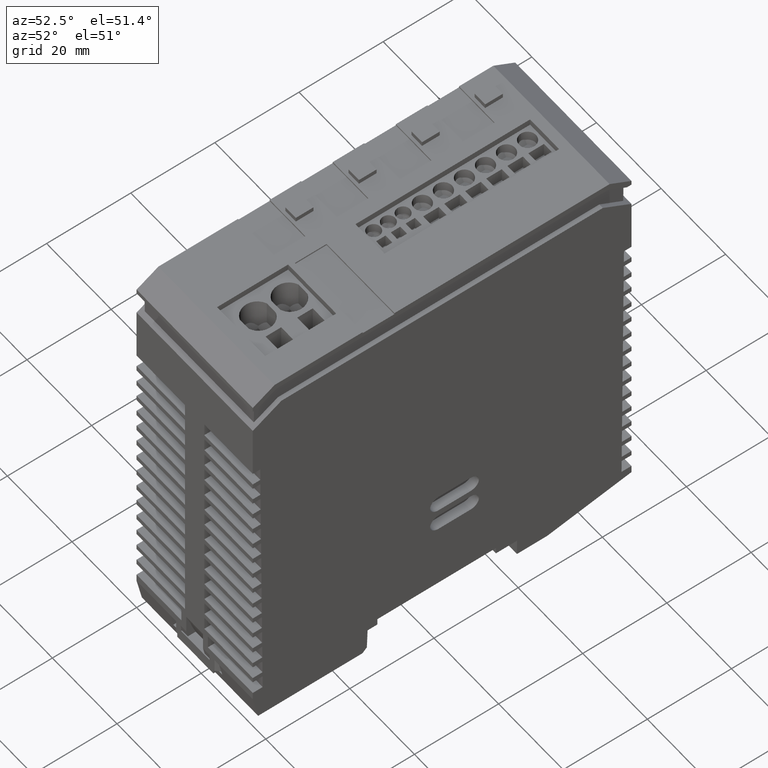
[diagram: clean part render]
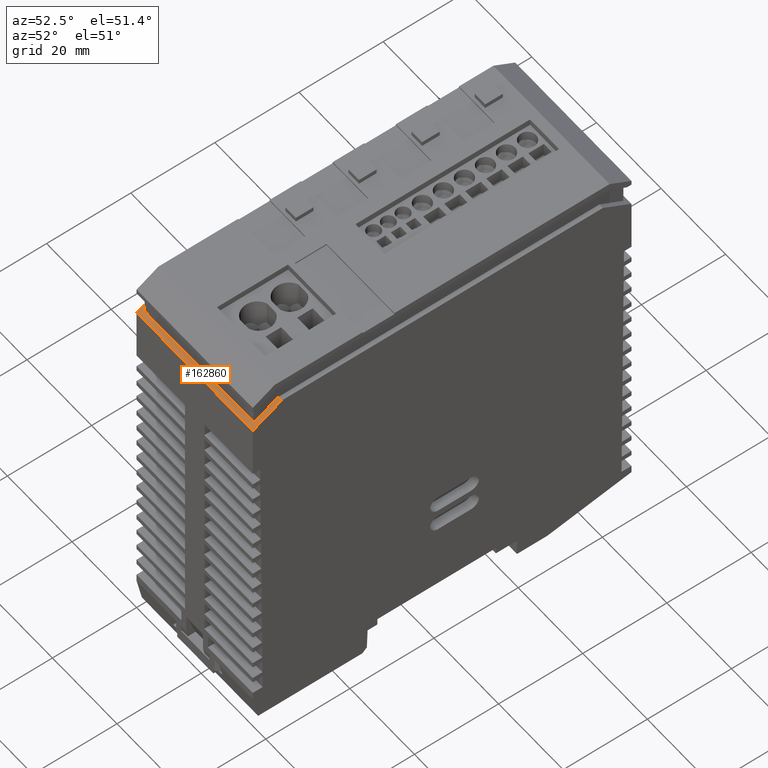
[diagram: same view with one face highlighted and labeled with its STEP entity id]
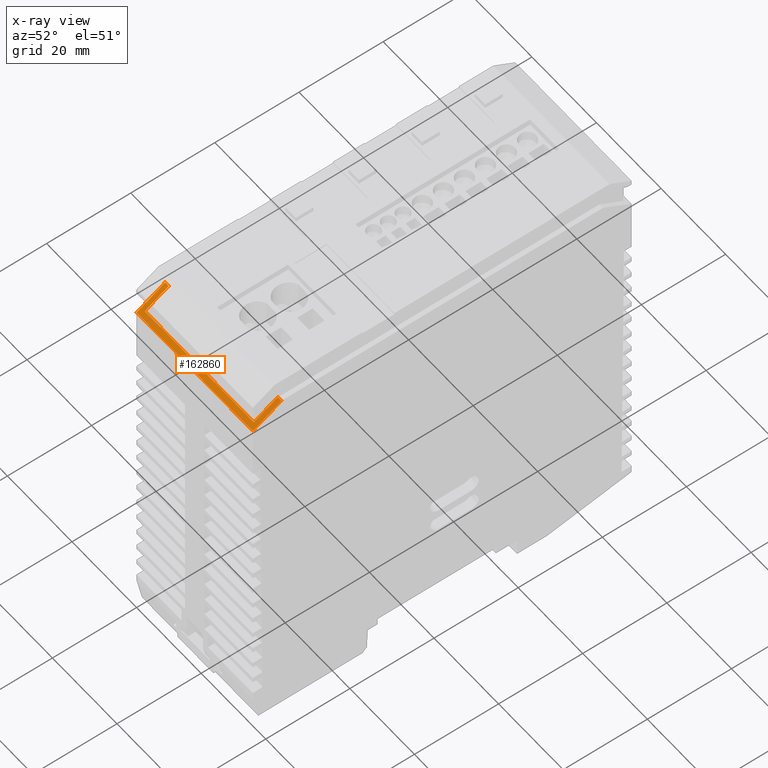
[diagram: x-ray of the same camera — body ghosted, the highlighted face saturated]
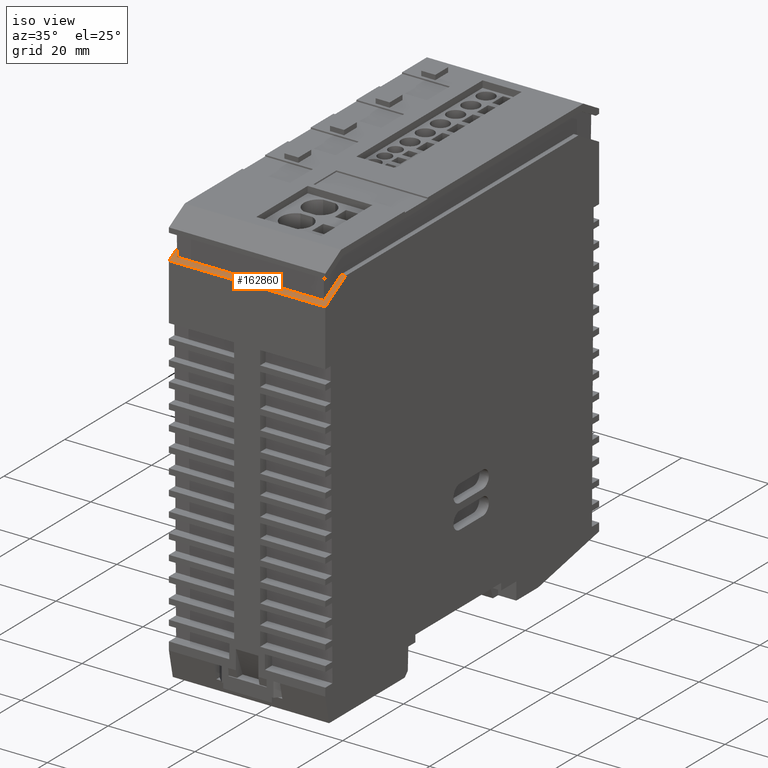
[diagram: same view with one face highlighted and labeled with its STEP entity id]
A machine part, auxiliary view. The second image highlights one B-rep face of the part: STEP entity #162860.
The next image is the same camera in x-ray: the body ghosted, the highlighted face saturated — about 0% of this face is hidden behind the body in this view.
A second angle (iso view) of the same face is appended — the face is thin or edge-on in the first view.
In plain terms, the highlighted planar face has unit normal (-0, -0.5, 0.866).
Its self-contained STEP definition (entity closure, byte-faithful):
#5630=CARTESIAN_POINT('',(83.0000005007027,-13.4961537406442,
-34.7997901178281));
#5640=VERTEX_POINT('',#5630);
#5670=CARTESIAN_POINT('',(60.9474410438597,24.6999996755416,
-34.7997900934925));
#5680=DIRECTION('',(-0.499999999999999,0.86602540378444,
5.51761865630231E-10));
#5690=VECTOR('',#5680,1.);
#5700=LINE('',#5670,#5690);
#5710=CARTESIAN_POINT('',(86.9282029700667,-20.3000000000002,
-34.7997901221629));
#5720=VERTEX_POINT('',#5710);
#5730=EDGE_CURVE('',#5720,#5640,#5700,.T.);
#42230=CARTESIAN_POINT('',(86.9282029700667,-20.3000000000002,
-34.7997901221629));
#42240=DIRECTION('',(1.10352367625519E-9,8.52434683568721E-24,1.));
#42250=VECTOR('',#42240,1.);
#42260=LINE('',#42230,#42250);
#42270=CARTESIAN_POINT('',(86.9282030097936,-20.3000000000002,
1.20020987783707));
#42280=VERTEX_POINT('',#42270);
#42290=EDGE_CURVE('',#5720,#42280,#42260,.T.);
#67010=CARTESIAN_POINT('',(86.2854847511356,-19.1867793877335,
-33.6865695171611));
#67020=VERTEX_POINT('',#67010);
#67050=CARTESIAN_POINT('',(60.9474410448441,24.6999996755416,
-33.9076912466996));
#67060=DIRECTION('',(-0.499995240183943,0.866017159532856,
-0.00436339180530485));
#67070=VECTOR('',#67060,1.);
#67080=LINE('',#67050,#67070);
#67090=CARTESIAN_POINT('',(83.0000005018995,-13.4961537406442,
-33.715241500207));
#67100=VERTEX_POINT('',#67090);
#67110=EDGE_CURVE('',#67020,#67100,#67080,.T.);
#69170=CARTESIAN_POINT('',(83.0000005392328,-13.4961537406442,
0.11566126455158));
#69180=VERTEX_POINT('',#69170);
#69210=CARTESIAN_POINT('',(60.9474410826021,24.6999996755416,
0.308111059714407));
#69220=DIRECTION('',(0.499995240174312,-0.866017159532856,
-0.00436339290879918));
#69230=VECTOR('',#69220,1.);
#69240=LINE('',#69210,#69230);
#69250=CARTESIAN_POINT('',(86.2854847884055,-19.1867793877336,
0.0869892742546022));
#69260=VERTEX_POINT('',#69250);
#69270=EDGE_CURVE('',#69180,#69260,#69240,.T.);
#136270=CARTESIAN_POINT('',(83.0000005007027,-13.4961537406442,
-34.7997901178281));
#136280=DIRECTION('',(1.10352367625519E-9,8.52460139740354E-24,1.));
#136290=VECTOR('',#136280,1.);
#136300=LINE('',#136270,#136290);
#136310=EDGE_CURVE('',#5640,#67100,#136300,.T.);
#140160=CARTESIAN_POINT('',(60.9474410835865,24.6999996755416,
1.20020990650746));
#140170=DIRECTION('',(-0.499999999999999,0.86602540378444,
5.51761865630231E-10));
#140180=VECTOR('',#140170,1.);
#140190=LINE('',#140160,#140180);
#140200=CARTESIAN_POINT('',(83.0000005404296,-13.4961537406442,
1.20020988217194));
#140210=VERTEX_POINT('',#140200);
#140220=EDGE_CURVE('',#42280,#140210,#140190,.T.);
#162610=CARTESIAN_POINT('',(83.0000005404296,-13.4961537406442,
1.20020988217194));
#162620=DIRECTION('',(-0.86602540378444,-0.499999999999999,
9.5567953731459E-10));
#162630=DIRECTION('',(-0.499999999999999,0.86602540378444,
5.51761865630231E-10));
#162640=AXIS2_PLACEMENT_3D('',#162610,#162620,#162630);
#162650=PLANE('',#162640);
#162660=ORIENTED_EDGE('',*,*,#42290,.T.);
#162670=ORIENTED_EDGE('',*,*,#5730,.F.);
#162680=ORIENTED_EDGE('',*,*,#136310,.F.);
#162690=ORIENTED_EDGE('',*,*,#67110,.T.);
#162700=CARTESIAN_POINT('',(86.2854847459344,-19.1867793877335,
-38.3997926510046));
#162710=DIRECTION('',(1.10352367625519E-9,8.52460139740354E-24,1.));
#162720=VECTOR('',#162710,1.);
#162730=LINE('',#162700,#162720);
#162740=EDGE_CURVE('',#67020,#69260,#162730,.T.);
#162750=ORIENTED_EDGE('',*,*,#162740,.F.);
#162760=ORIENTED_EDGE('',*,*,#69270,.T.);
#162770=CARTESIAN_POINT('',(83.0000005007027,-13.4961537406442,
-34.7997901178281));
#162780=DIRECTION('',(-1.10352367625519E-9,-8.52460139740354E-24,-1.));
#162790=VECTOR('',#162780,1.);
#162800=LINE('',#162770,#162790);
#162810=EDGE_CURVE('',#140210,#69180,#162800,.T.);
#162820=ORIENTED_EDGE('',*,*,#162810,.T.);
#162830=ORIENTED_EDGE('',*,*,#140220,.T.);
#162840=EDGE_LOOP('',(#162830,#162820,#162760,#162750,#162690,#162680,
#162670,#162660));
#162850=FACE_OUTER_BOUND('',#162840,.T.);
#162860=ADVANCED_FACE('',(#162850),#162650,.T.);